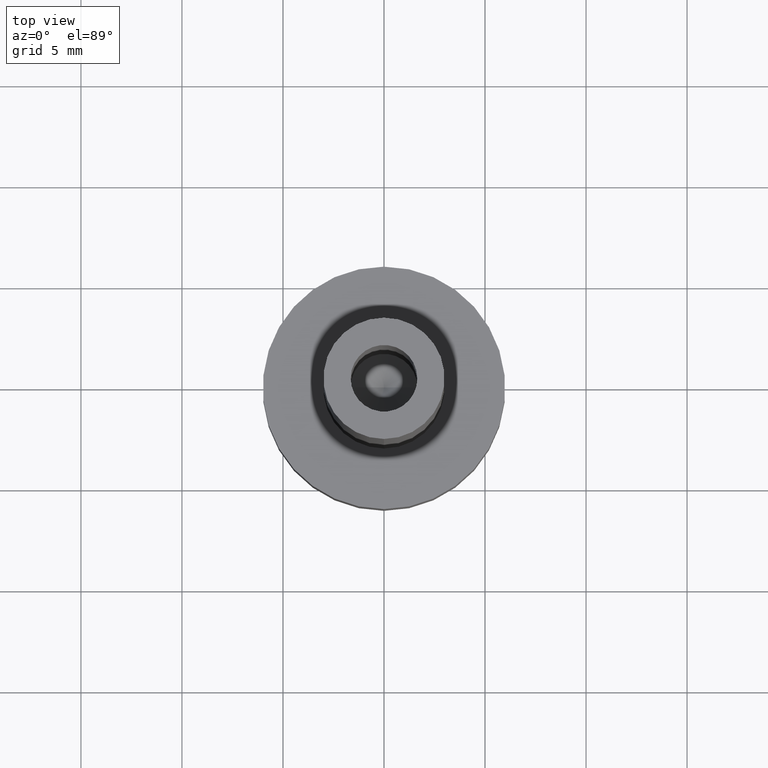
[diagram: clean part render]
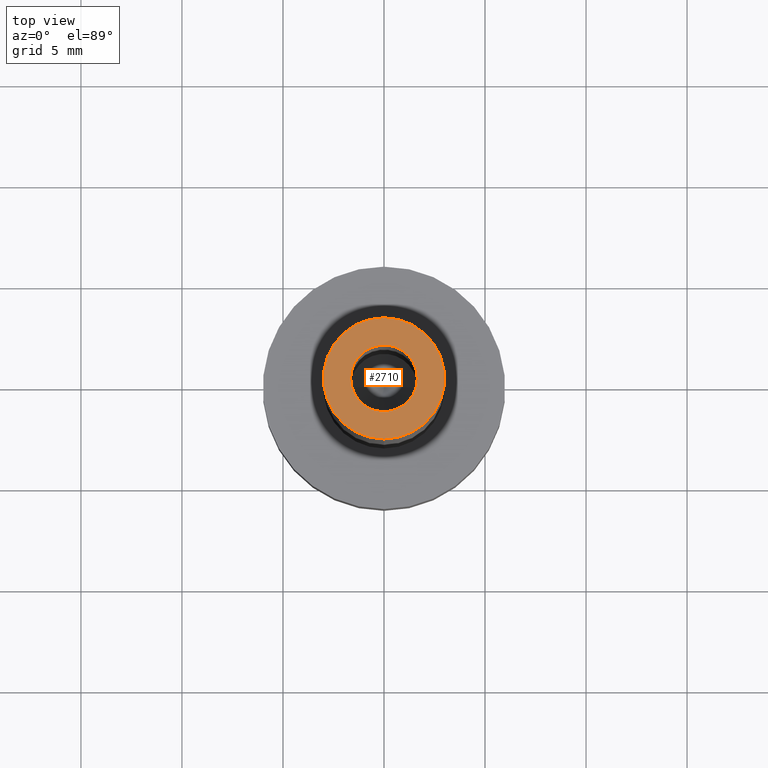
[diagram: same view with one face highlighted and labeled with its STEP entity id]
A machine part, top view. The second image highlights one B-rep face of the part: STEP entity #2710.
In plain terms, the highlighted planar face has unit normal (0, -0, 1).
Its self-contained STEP definition (entity closure, byte-faithful):
#127 = EDGE_CURVE ( 'NONE', #1269, #4375, #9608, .T. ) ;
#196 = ORIENTED_EDGE ( 'NONE', *, *, #127, .F. ) ;
#885 = CARTESIAN_POINT ( 'NONE',  ( 1.649999999999996600, -3.306546357697853300E-015, 32.00000000000000000 ) ) ;
#1081 = CIRCLE ( 'NONE', #3261, 2.999999999999999600 ) ;
#1269 = VERTEX_POINT ( 'NONE', #885 ) ;
#1335 = CARTESIAN_POINT ( 'NONE',  ( -1.649999999999996800, -3.104479635838540600E-015, 32.00000000000000000 ) ) ;
#1683 = FACE_BOUND ( 'NONE', #9507, .T. ) ;
#2232 = CIRCLE ( 'NONE', #5386, 1.649999999999996600 ) ;
#2282 = CARTESIAN_POINT ( 'NONE',  ( 0.0000000000000000000, -3.918869757271530300E-015, 32.00000000000000000 ) ) ;
#2328 = EDGE_CURVE ( 'NONE', #4375, #1269, #2232, .T. ) ;
#2591 = EDGE_CURVE ( 'NONE', #6680, #5772, #1081, .T. ) ;
#2696 = PLANE ( 'NONE',  #9653 ) ;
#2710 = ADVANCED_FACE ( 'NONE', ( #1683, #6554 ), #2696, .T. ) ;
#3045 = EDGE_CURVE ( 'NONE', #5772, #6680, #12180, .T. ) ;
#3073 = AXIS2_PLACEMENT_3D ( 'NONE', #4306, #4383, #6193 ) ;
#3261 = AXIS2_PLACEMENT_3D ( 'NONE', #2282, #7161, #3541 ) ;
#3346 = CARTESIAN_POINT ( 'NONE',  ( 0.0000000000000000000, -3.306546357697853300E-015, 32.00000000000000000 ) ) ;
#3347 = DIRECTION ( 'NONE',  ( -0.0000000000000000000, -0.0000000000000000000, 1.000000000000000000 ) ) ;
#3475 = EDGE_LOOP ( 'NONE', ( #4146, #5966 ) ) ;
#3541 = DIRECTION ( 'NONE',  ( 0.0000000000000000000, 1.000000000000000000, 0.0000000000000000000 ) ) ;
#4131 = CARTESIAN_POINT ( 'NONE',  ( 3.673940397442061300E-016, -3.000000000000003600, 32.00000000000000000 ) ) ;
#4146 = ORIENTED_EDGE ( 'NONE', *, *, #3045, .F. ) ;
#4306 = CARTESIAN_POINT ( 'NONE',  ( 0.0000000000000000000, -3.918869757271530300E-015, 32.00000000000000000 ) ) ;
#4375 = VERTEX_POINT ( 'NONE', #1335 ) ;
#4383 = DIRECTION ( 'NONE',  ( -0.0000000000000000000, 1.224646799147353200E-016, -1.000000000000000000 ) ) ;
#5386 = AXIS2_PLACEMENT_3D ( 'NONE', #9074, #3347, #6264 ) ;
#5772 = VERTEX_POINT ( 'NONE', #7742 ) ;
#5966 = ORIENTED_EDGE ( 'NONE', *, *, #2591, .F. ) ;
#6193 = DIRECTION ( 'NONE',  ( 0.0000000000000000000, 1.000000000000000000, 0.0000000000000000000 ) ) ;
#6264 = DIRECTION ( 'NONE',  ( 1.000000000000000000, 0.0000000000000000000, 0.0000000000000000000 ) ) ;
#6502 = CARTESIAN_POINT ( 'NONE',  ( 0.0000000000000000000, 2.999999999999995600, 32.00000000000000000 ) ) ;
#6554 = FACE_OUTER_BOUND ( 'NONE', #3475, .T. ) ;
#6680 = VERTEX_POINT ( 'NONE', #4131 ) ;
#6959 = AXIS2_PLACEMENT_3D ( 'NONE', #3346, #9832, #10825 ) ;
#7161 = DIRECTION ( 'NONE',  ( -0.0000000000000000000, 1.224646799147353200E-016, -1.000000000000000000 ) ) ;
#7495 = DIRECTION ( 'NONE',  ( 0.0000000000000000000, -1.000000000000000000, -1.224646799147353200E-016 ) ) ;
#7742 = CARTESIAN_POINT ( 'NONE',  ( 0.0000000000000000000, 2.999999999999995600, 32.00000000000000000 ) ) ;
#7999 = ORIENTED_EDGE ( 'NONE', *, *, #2328, .F. ) ;
#9074 = CARTESIAN_POINT ( 'NONE',  ( 0.0000000000000000000, -3.306546357697853300E-015, 32.00000000000000000 ) ) ;
#9507 = EDGE_LOOP ( 'NONE', ( #196, #7999 ) ) ;
#9608 = CIRCLE ( 'NONE', #6959, 1.649999999999996600 ) ;
#9653 = AXIS2_PLACEMENT_3D ( 'NONE', #6502, #10271, #7495 ) ;
#9832 = DIRECTION ( 'NONE',  ( -0.0000000000000000000, -0.0000000000000000000, 1.000000000000000000 ) ) ;
#10271 = DIRECTION ( 'NONE',  ( 0.0000000000000000000, -1.224646799147353200E-016, 1.000000000000000000 ) ) ;
#10825 = DIRECTION ( 'NONE',  ( 1.000000000000000000, 0.0000000000000000000, 0.0000000000000000000 ) ) ;
#12180 = CIRCLE ( 'NONE', #3073, 2.999999999999999600 ) ;